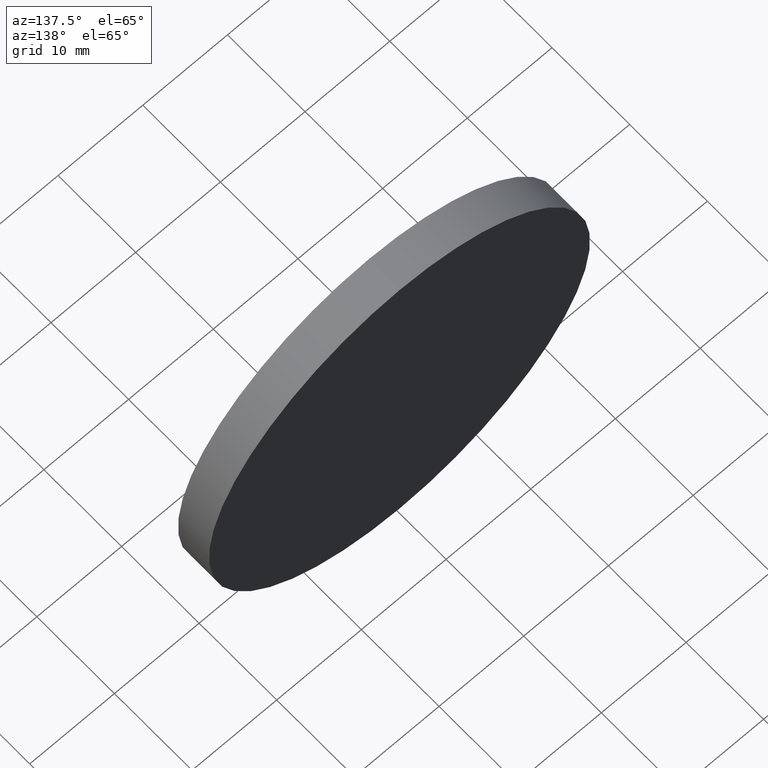
[diagram: clean part render]
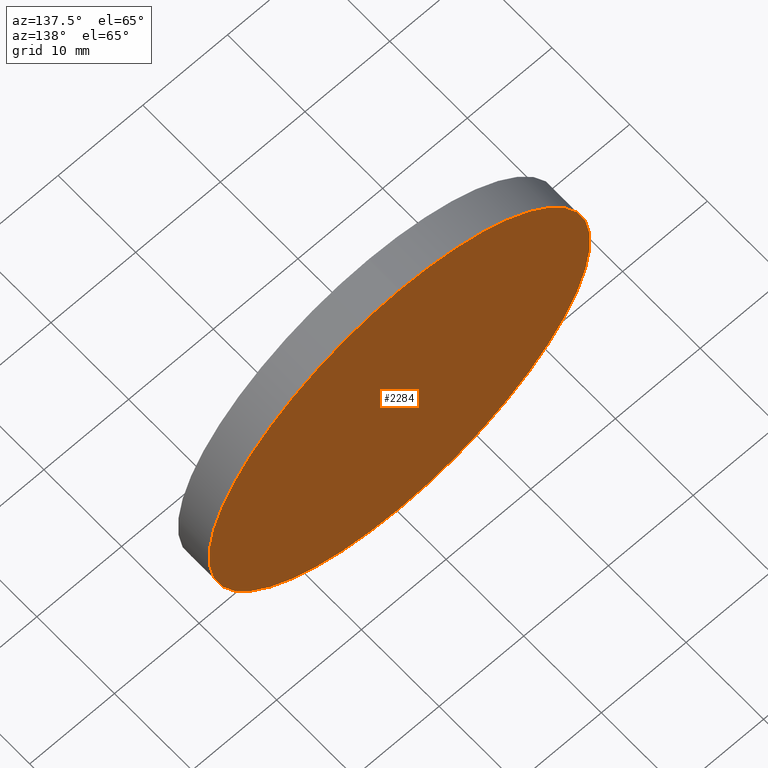
[diagram: same view with one face highlighted and labeled with its STEP entity id]
A machine part, auxiliary view. The second image highlights one B-rep face of the part: STEP entity #2284.
In plain terms, the highlighted planar face has unit normal (0, 1, 0).
Its self-contained STEP definition (entity closure, byte-faithful):
#492 = PLANE ( 'NONE',  #3278 ) ;
#1853 = VERTEX_POINT ( 'NONE', #6252 ) ;
#1952 = VERTEX_POINT ( 'NONE', #11151 ) ;
#2053 = EDGE_CURVE ( 'NONE', #1952, #1853, #4363, .T. ) ;
#2284 = ADVANCED_FACE ( 'NONE', ( #4071 ), #492, .T. ) ;
#2633 = DIRECTION ( 'NONE',  ( 0.0000000000000000000, 1.000000000000000000, 0.0000000000000000000 ) ) ;
#3031 = DIRECTION ( 'NONE',  ( 0.0000000000000000000, 0.0000000000000000000, 1.000000000000000000 ) ) ;
#3278 = AXIS2_PLACEMENT_3D ( 'NONE', #7012, #8008, #8911 ) ;
#4071 = FACE_OUTER_BOUND ( 'NONE', #5055, .T. ) ;
#4363 = CIRCLE ( 'NONE', #11308, 22.50000000000000400 ) ;
#5055 = EDGE_LOOP ( 'NONE', ( #11021, #10757 ) ) ;
#5721 = CARTESIAN_POINT ( 'NONE',  ( 0.0000000000000000000, 4.000000000000000000, 0.0000000000000000000 ) ) ;
#6159 = CIRCLE ( 'NONE', #10765, 22.50000000000000400 ) ;
#6252 = CARTESIAN_POINT ( 'NONE',  ( 2.755455298081545200E-015, 4.000000000000000000, 22.50000000000000400 ) ) ;
#7012 = CARTESIAN_POINT ( 'NONE',  ( 0.0000000000000000000, 4.000000000000000000, 0.0000000000000000000 ) ) ;
#7305 = CARTESIAN_POINT ( 'NONE',  ( 0.0000000000000000000, 4.000000000000000000, 0.0000000000000000000 ) ) ;
#7626 = DIRECTION ( 'NONE',  ( 0.0000000000000000000, 1.000000000000000000, 0.0000000000000000000 ) ) ;
#7908 = EDGE_CURVE ( 'NONE', #1853, #1952, #6159, .T. ) ;
#8008 = DIRECTION ( 'NONE',  ( 0.0000000000000000000, 1.000000000000000000, 0.0000000000000000000 ) ) ;
#8911 = DIRECTION ( 'NONE',  ( 0.0000000000000000000, -0.0000000000000000000, 1.000000000000000000 ) ) ;
#9194 = DIRECTION ( 'NONE',  ( 0.0000000000000000000, 0.0000000000000000000, 1.000000000000000000 ) ) ;
#10757 = ORIENTED_EDGE ( 'NONE', *, *, #7908, .T. ) ;
#10765 = AXIS2_PLACEMENT_3D ( 'NONE', #7305, #2633, #9194 ) ;
#11021 = ORIENTED_EDGE ( 'NONE', *, *, #2053, .T. ) ;
#11151 = CARTESIAN_POINT ( 'NONE',  ( 0.0000000000000000000, 4.000000000000000000, -22.50000000000000400 ) ) ;
#11308 = AXIS2_PLACEMENT_3D ( 'NONE', #5721, #7626, #3031 ) ;